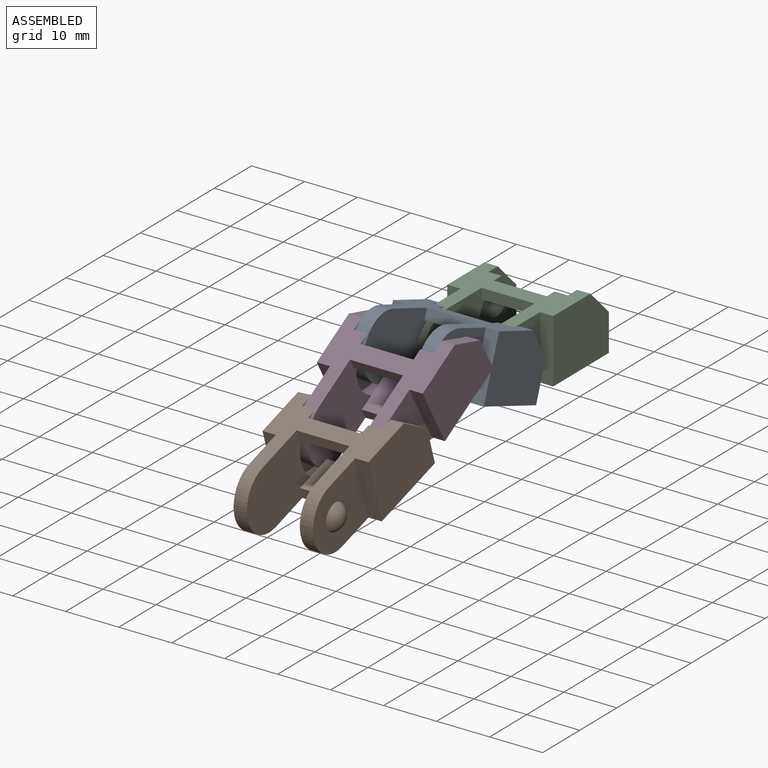
[diagram: assembled view]
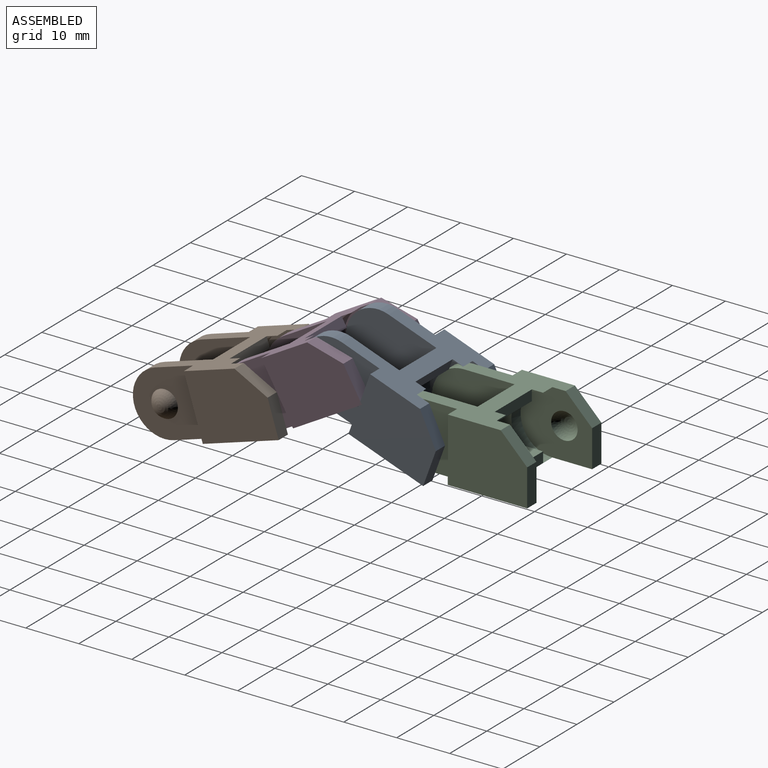
[diagram: assembled view, second angle]
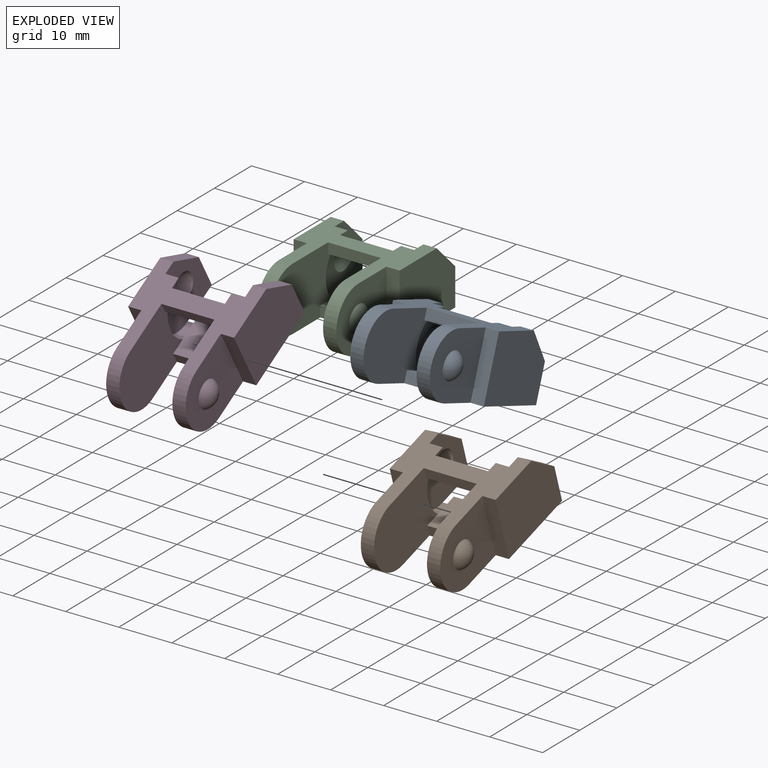
[diagram: exploded view]
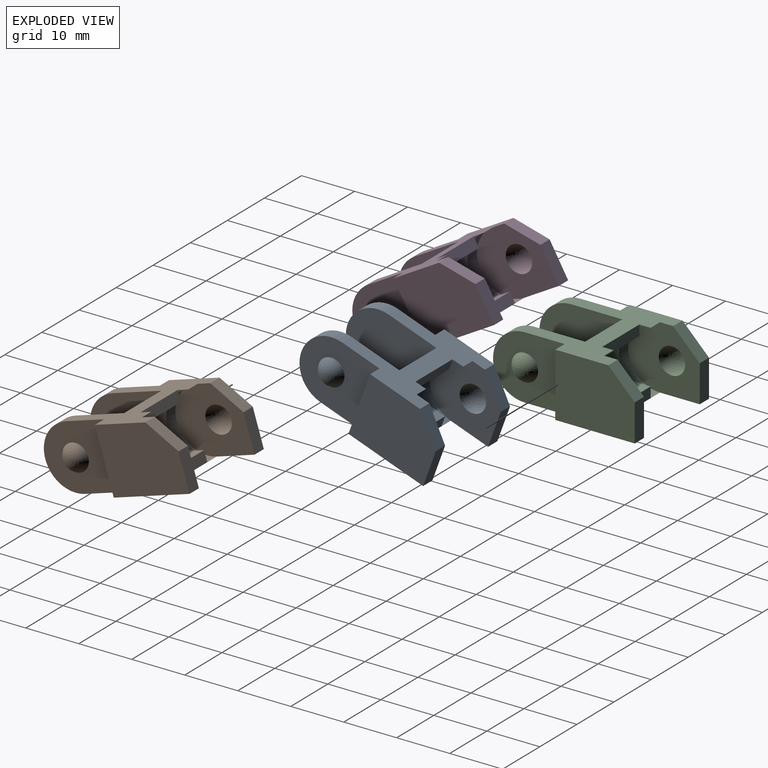
[diagram: exploded view, second angle]
ASSEMBLY  parts=4 mates=3
PART A: 36 faces, bbox 20x28.5x12 mm
  f0: plane 16.53x12mm, normal (-1,0,0), area 166.6mm2, adj f2,f3,f4,f5,f13,f16,f17,f20
  f1: plane 13.5x12mm, normal (1,0,0), area 126.9mm2, adj f2,f4,f5,f10,f21
  f2: plane 22.5x20mm, normal (0,0,-1), area 225mm2, adj f0,f1,f3,f5,f7,f8,f10,f11
  f3: cylinder r=6mm len=12mm, axis (1,0,0), area 47.1mm2, adj f0,f2,f4,f6,f7,f14,f19
  f4: plane 20x17.5mm, normal (0,0,1), area 157.5mm2, adj f0,f1,f3,f5,f6,f7,f9,f10
  f5: cylinder r=6mm len=12mm, axis (1,0,0), area 47.1mm2, adj f0,f1,f2,f4
  f6: plane 2.13x0.39mm, normal (-1,0,0), area 0.3mm2, adj f3,f4,f15
  f7: plane 13.5x12mm, normal (-1,0,0), area 114.4mm2, adj f2,f3,f4,f8,f9,f12
  f8: plane 7x2.5mm, normal (0,1,0), area 17.5mm2, adj f2,f7,f9,f11
  f9: plane 5x5mm, normal (0,0.71,0.71), area 17.7mm2, adj f4,f7,f8,f11
  f10: plane 12x2.5mm, normal (0,-1,0), area 30mm2, adj f1,f2,f4,f11
  f11: plane 15x12mm, normal (1,0,0), area 167.5mm2, adj f2,f4,f8,f9,f10
  f12: sphere r=2.79mm, area 27.2mm2, adj f7
  f13: plane 10x2mm, normal (0,-1,0), area 20mm2, adj f0,f4,f16,f22
  f14: plane 2.35x1.61mm, normal (1,0,0), area 2.2mm2, adj f3,f15,f16
  f15: plane 10x2mm, normal (0,1,0), area 20mm2, adj f4,f6,f14,f16,f26,f33
  f16: plane 10x3.25mm, normal (0,0,-1), area 32.5mm2, adj f0,f13,f14,f15,f22,f33
  f17: plane 10x2mm, normal (0,-1,0), area 20mm2, adj f0,f2,f20,f22
  f18: plane 10x2mm, normal (0,1,0), area 20mm2, adj f2,f19,f20,f34
  f19: plane 4.47x2mm, normal (1,0,0), area 6.2mm2, adj f3,f18,f20
  f20: plane 10x7.5mm, normal (0,0,1), area 75mm2, adj f0,f17,f18,f19,f22,f34
  f21: sphere r=2.81mm, area 26.9mm2, adj f1
  f22: plane 16.53x12mm, normal (1,0,0), area 166.6mm2, adj f2,f4,f13,f16,f17,f20,f24,f25
  f23: plane 13.5x12mm, normal (-1,0,0), area 126.9mm2, adj f2,f4,f25,f30,f35
  f24: cylinder r=6mm len=12mm, axis (-1,0,0), area 47.1mm2, adj f2,f4,f22,f26,f27,f33,f34
  f25: cylinder r=6mm len=12mm, axis (-1,0,0), area 47.1mm2, adj f2,f4,f22,f23
  f26: plane 2.13x0.39mm, normal (1,0,0), area 0.3mm2, adj f4,f15,f24
  f27: plane 13.5x12mm, normal (1,0,0), area 114.4mm2, adj f2,f4,f24,f28,f29,f32
  f28: plane 7x2.5mm, normal (0,1,0), area 17.5mm2, adj f2,f27,f29,f31
  f29: plane 5x5mm, normal (0,0.71,0.71), area 17.7mm2, adj f4,f27,f28,f31
  f30: plane 12x2.5mm, normal (0,-1,0), area 30mm2, adj f2,f4,f23,f31
  f31: plane 15x12mm, normal (-1,0,0), area 167.5mm2, adj f2,f4,f28,f29,f30
  f32: sphere r=2.79mm, area 27.2mm2, adj f27
  f33: plane 2.35x1.61mm, normal (-1,0,0), area 2.2mm2, adj f15,f16,f24
  f34: plane 4.47x2mm, normal (-1,0,0), area 6.2mm2, adj f18,f20,f24
  f35: sphere r=2.81mm, area 26.9mm2, adj f23
PART B: same geometry as A
PART C: same geometry as A
PART D: same geometry as A
PLACE A rot(axis=(-1,0,0),20deg) t=(3.24,-12.05,23.24)mm
PLACE B rot(axis=(1,0,0),17.3deg) t=(3.24,-43.38,14.26)mm
PLACE C t=(3.24,4.63,19.9)mm
PLACE D rot(axis=(1,0,0),30deg) t=(3.24,-27.56,20.92)mm
MATE revolute D.f5 <-> B.f7  axis (1,0,0) through (3.24,-34.05,17.17)mm
MATE revolute D.f7 <-> A.f5  axis (-1,0,0) through (3.24,-19.09,25.81)mm
MATE revolute A.f7 <-> C.f5  axis (-1,0,0) through (3.24,-2.87,19.9)mm
